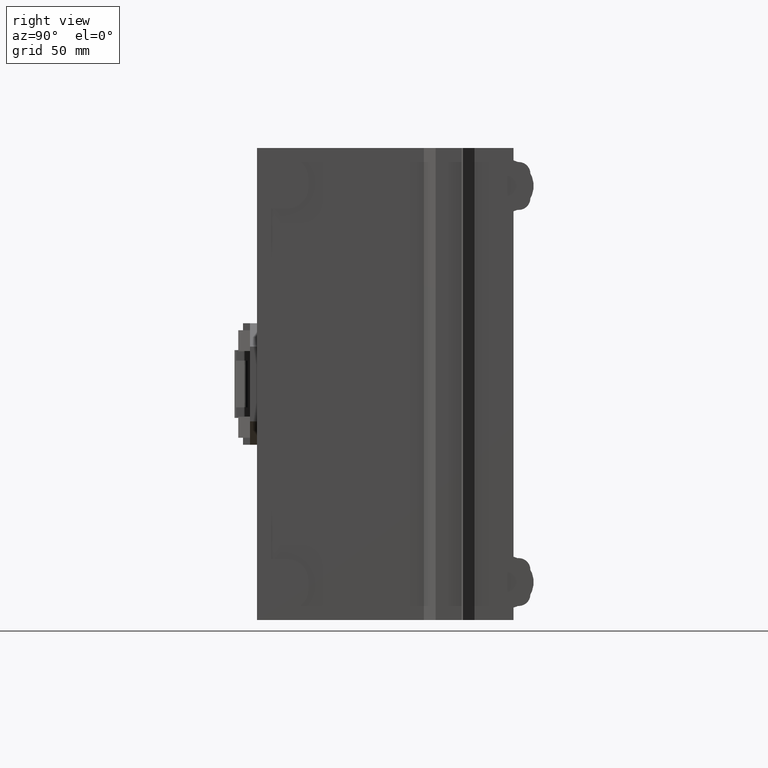
[diagram: clean part render]
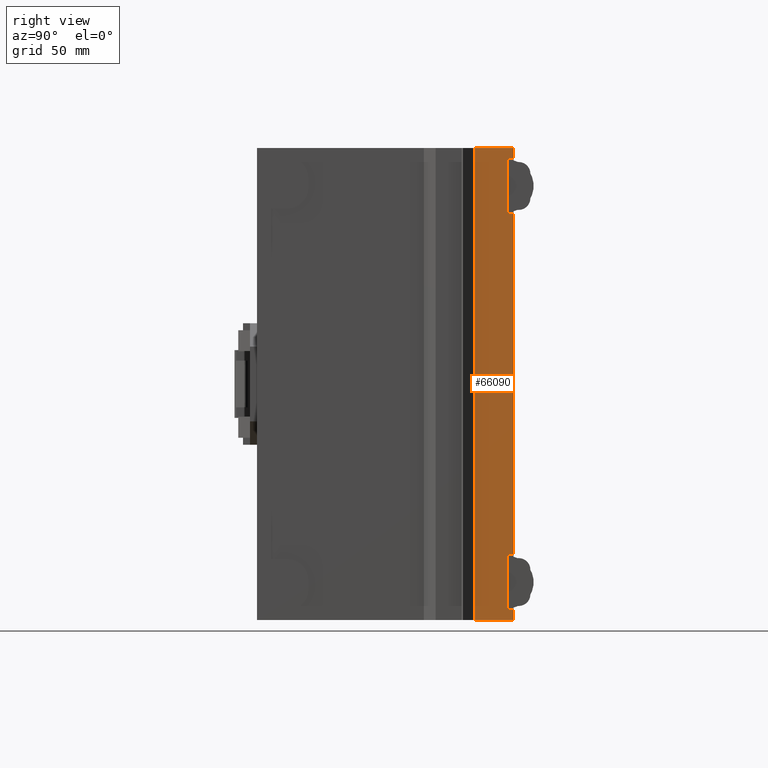
[diagram: same view with one face highlighted and labeled with its STEP entity id]
A machine part, right view. The second image highlights one B-rep face of the part: STEP entity #66090.
In plain terms, the highlighted planar face has unit normal (1, 0, 0).
Its self-contained STEP definition (entity closure, byte-faithful):
#16530=CARTESIAN_POINT('',(92.5,108.75,-158.55));
#16540=DIRECTION('',(0.,1.,0.));
#16550=VECTOR('',#16540,1.);
#16560=LINE('',#16530,#16550);
#16570=CARTESIAN_POINT('',(92.5,92.084936490486,-158.55));
#16580=VERTEX_POINT('',#16570);
#16590=CARTESIAN_POINT('',(92.5,108.75,-158.55));
#16600=VERTEX_POINT('',#16590);
#16610=EDGE_CURVE('',#16580,#16600,#16560,.T.);
#31780=CARTESIAN_POINT('',(88.,106.15,-158.55));
#31790=VERTEX_POINT('',#31780);
#31840=CARTESIAN_POINT('',(88.,108.75,-158.55));
#31850=DIRECTION('',(0.,-1.,0.));
#31860=VECTOR('',#31850,1.);
#31870=LINE('',#31840,#31860);
#31880=CARTESIAN_POINT('',(88.,108.75,-158.55));
#31890=VERTEX_POINT('',#31880);
#31900=EDGE_CURVE('',#31890,#31790,#31870,.T.);
#33470=CARTESIAN_POINT('',(64.5,108.75,-158.55));
#33480=VERTEX_POINT('',#33470);
#33510=CARTESIAN_POINT('',(64.5,0.,-158.55));
#33520=DIRECTION('',(-0.,-1.,0.));
#33530=VECTOR('',#33520,1.);
#33540=LINE('',#33510,#33530);
#33550=CARTESIAN_POINT('',(64.5,106.15,-158.55));
#33560=VERTEX_POINT('',#33550);
#33570=EDGE_CURVE('',#33480,#33560,#33540,.T.);
#33900=CARTESIAN_POINT('',(50.,108.75,-158.55));
#33910=DIRECTION('',(-1.,0.,0.));
#33920=VECTOR('',#33910,1.);
#33930=LINE('',#33900,#33920);
#33940=EDGE_CURVE('',#16600,#31890,#33930,.T.);
#34200=CARTESIAN_POINT('',(-109.5,108.75,-158.55));
#34210=VERTEX_POINT('',#34200);
#34240=CARTESIAN_POINT('',(-67.,108.75,-158.55));
#34250=DIRECTION('',(1.,0.,0.));
#34260=VECTOR('',#34250,1.);
#34270=LINE('',#34240,#34260);
#34280=CARTESIAN_POINT('',(-105.,108.75,-158.55));
#34290=VERTEX_POINT('',#34280);
#34300=EDGE_CURVE('',#34210,#34290,#34270,.T.);
#34800=CARTESIAN_POINT('',(-81.5,108.75,-158.55));
#34810=VERTEX_POINT('',#34800);
#34840=CARTESIAN_POINT('',(-67.,108.75,-158.55));
#34850=DIRECTION('',(1.,-0.,0.));
#34860=VECTOR('',#34850,1.);
#34870=LINE('',#34840,#34860);
#34880=EDGE_CURVE('',#34810,#33480,#34870,.T.);
#35770=CARTESIAN_POINT('',(0.,106.15,-158.55));
#35780=DIRECTION('',(-1.,-0.,0.));
#35790=VECTOR('',#35780,1.);
#35800=LINE('',#35770,#35790);
#35810=EDGE_CURVE('',#31790,#33560,#35800,.T.);
#38750=CARTESIAN_POINT('',(-109.5,92.084936490486,-158.55));
#38760=VERTEX_POINT('',#38750);
#38790=CARTESIAN_POINT('',(-109.5,108.75,-158.55));
#38800=DIRECTION('',(0.,1.,0.));
#38810=VECTOR('',#38800,1.);
#38820=LINE('',#38790,#38810);
#38830=EDGE_CURVE('',#38760,#34210,#38820,.T.);
#40800=CARTESIAN_POINT('',(0.,92.084936490486,-158.55));
#40810=DIRECTION('',(1.,-0.,-0.));
#40820=VECTOR('',#40810,1.);
#40830=LINE('',#40800,#40820);
#40840=EDGE_CURVE('',#38760,#16580,#40830,.T.);
#65540=CARTESIAN_POINT('',(-105.,108.75,-158.55));
#65550=DIRECTION('',(0.,-1.,0.));
#65560=VECTOR('',#65550,1.);
#65570=LINE('',#65540,#65560);
#65580=CARTESIAN_POINT('',(-105.,106.15,-158.55));
#65590=VERTEX_POINT('',#65580);
#65600=EDGE_CURVE('',#34290,#65590,#65570,.T.);
#65780=CARTESIAN_POINT('',(-24.5,108.75,-158.55));
#65790=DIRECTION('',(0.,0.,-1.));
#65800=DIRECTION('',(1.,0.,0.));
#65810=AXIS2_PLACEMENT_3D('',#65780,#65790,#65800);
#65820=PLANE('',#65810);
#65830=ORIENTED_EDGE('',*,*,#16610,.F.);
#65840=ORIENTED_EDGE('',*,*,#33940,.F.);
#65850=ORIENTED_EDGE('',*,*,#31900,.F.);
#65860=ORIENTED_EDGE('',*,*,#35810,.F.);
#65870=ORIENTED_EDGE('',*,*,#33570,.T.);
#65880=ORIENTED_EDGE('',*,*,#34880,.T.);
#65890=CARTESIAN_POINT('',(-81.5,0.,-158.55));
#65900=DIRECTION('',(0.,-1.,0.));
#65910=VECTOR('',#65900,1.);
#65920=LINE('',#65890,#65910);
#65930=CARTESIAN_POINT('',(-81.5,106.15,-158.55));
#65940=VERTEX_POINT('',#65930);
#65950=EDGE_CURVE('',#34810,#65940,#65920,.T.);
#65960=ORIENTED_EDGE('',*,*,#65950,.F.);
#65970=CARTESIAN_POINT('',(-17.,106.15,-158.55));
#65980=DIRECTION('',(1.,0.,0.));
#65990=VECTOR('',#65980,1.);
#66000=LINE('',#65970,#65990);
#66010=EDGE_CURVE('',#65590,#65940,#66000,.T.);
#66020=ORIENTED_EDGE('',*,*,#66010,.T.);
#66030=ORIENTED_EDGE('',*,*,#65600,.T.);
#66040=ORIENTED_EDGE('',*,*,#34300,.T.);
#66050=ORIENTED_EDGE('',*,*,#38830,.T.);
#66060=ORIENTED_EDGE('',*,*,#40840,.F.);
#66070=EDGE_LOOP('',(#66060,#66050,#66040,#66030,#66020,#65960,#65880,
#65870,#65860,#65850,#65840,#65830));
#66080=FACE_OUTER_BOUND('',#66070,.T.);
#66090=ADVANCED_FACE('',(#66080),#65820,.T.);